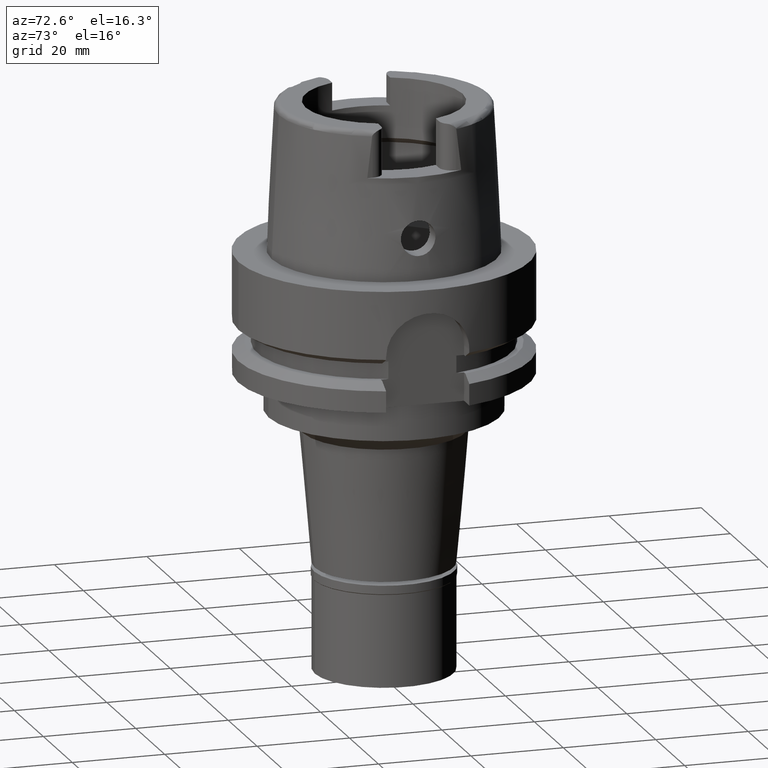
[diagram: clean part render]
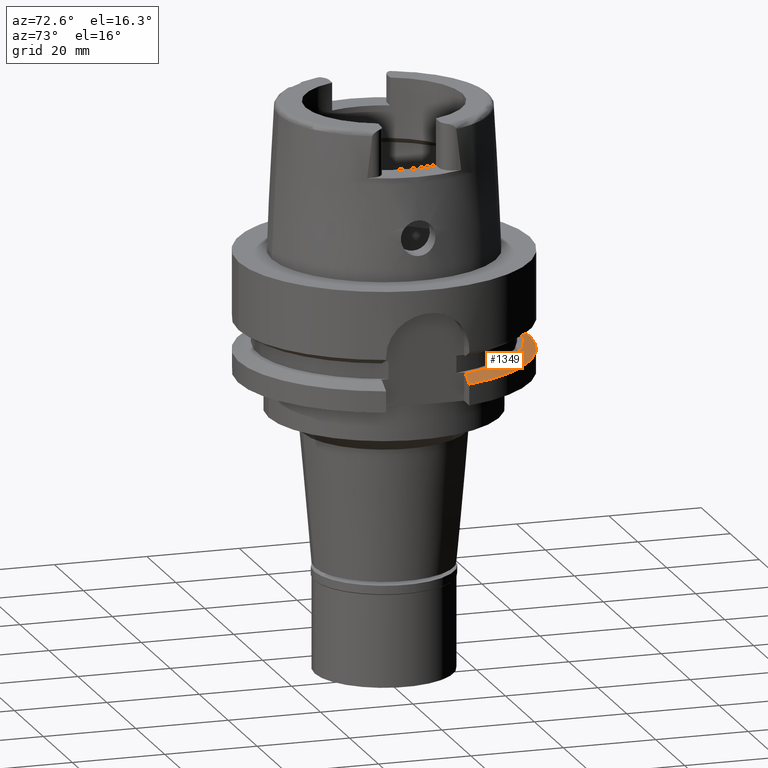
[diagram: same view with one face highlighted and labeled with its STEP entity id]
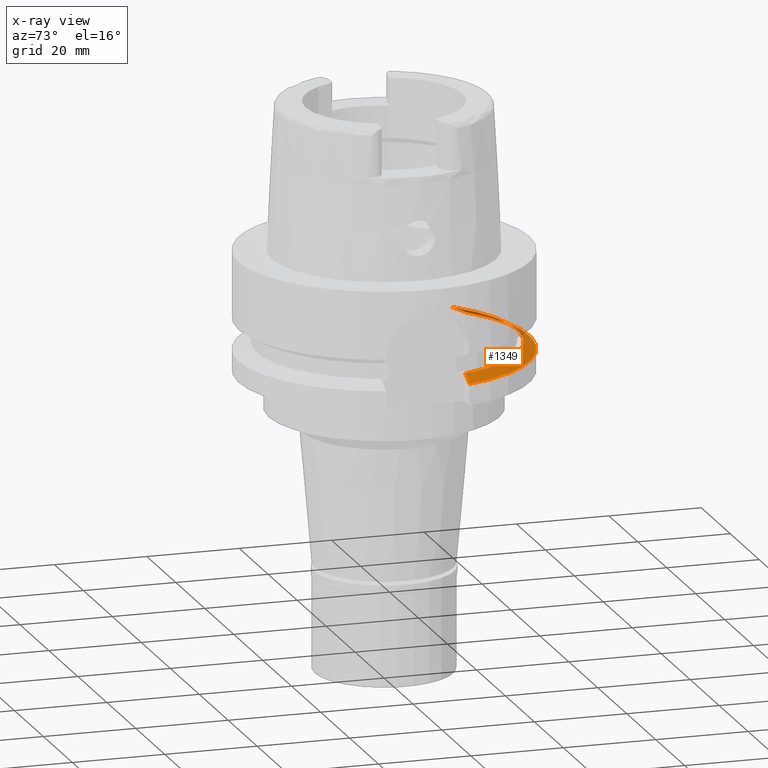
[diagram: x-ray of the same camera — body ghosted, the highlighted face saturated]
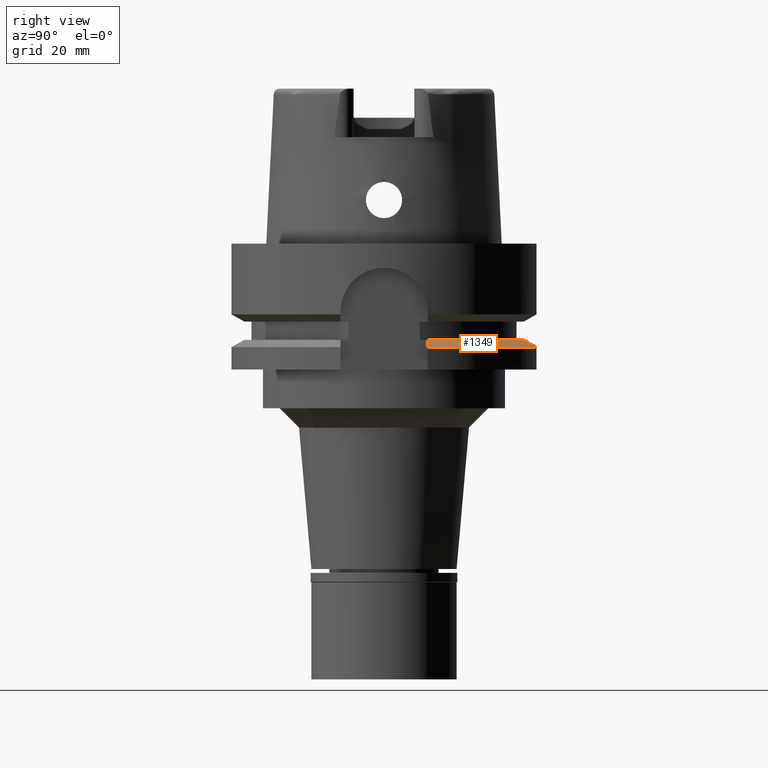
[diagram: same view with one face highlighted and labeled with its STEP entity id]
A machine part, auxiliary view. The second image highlights one B-rep face of the part: STEP entity #1349.
The next image is the same camera in x-ray: the body ghosted, the highlighted face saturated — about 11% of this face is hidden behind the body in this view.
A second angle (right view) of the same face is appended — the face is thin or edge-on in the first view.
In plain terms, the highlighted conical surface has half-angle 60 deg.
Its self-contained STEP definition (entity closure, byte-faithful):
#662 = AXIS2_PLACEMENT_3D ( 'NONE', #1709, #1316, #2077 ) ;
#751 = EDGE_CURVE ( 'NONE', #4637, #3938, #1319, .T. ) ;
#872 = DIRECTION ( 'NONE',  ( 0.0000000000000000000, 0.0000000000000000000, -1.000000000000000000 ) ) ;
#973 = VERTEX_POINT ( 'NONE', #1171 ) ;
#1171 = CARTESIAN_POINT ( 'NONE',  ( -20.00000400463999739, 20.85831983694999892, -19.87500000000000000 ) ) ;
#1216 = ORIENTED_EDGE ( 'NONE', *, *, #751, .F. ) ;
#1276 = DIRECTION ( 'NONE',  ( 0.0000000000000000000, -1.000000000000000000, 0.0000000000000000000 ) ) ;
#1316 = DIRECTION ( 'NONE',  ( 0.0000000000000000000, 0.0000000000000000000, -1.000000000000000000 ) ) ;
#1319 = CIRCLE ( 'NONE', #1949, 31.50000000000000711 ) ;
#1349 = ADVANCED_FACE ( 'NONE', ( #5589 ), #5182, .T. ) ;
#1460 = CARTESIAN_POINT ( 'NONE',  ( 28.33125523476728347, 9.000000427717699480, -20.35280757687736752 ) ) ;
#1464 = CARTESIAN_POINT ( 'NONE',  ( 27.46035049849000131, 9.000000213579998132, -19.87500000000000000 ) ) ;
#1507 = B_SPLINE_CURVE_WITH_KNOTS ( 'NONE', 3,
 ( #3537, #1460, #1813, #5270 ),
 .UNSPECIFIED., .F., .F.,
 ( 4, 4 ),
 ( 0.0000000000000000000, 1.000000000000000000 ),
 .UNSPECIFIED. ) ;
#1548 = ORIENTED_EDGE ( 'NONE', *, *, #2971, .T. ) ;
#1597 = EDGE_CURVE ( 'NONE', #3177, #3938, #1507, .T. ) ;
#1709 = CARTESIAN_POINT ( 'NONE',  ( 0.0000000000000000000, 0.0000000000000000000, -19.87500000000000000 ) ) ;
#1813 = CARTESIAN_POINT ( 'NONE',  ( 29.24010110251691330, 9.000001386287653560, -20.85364146424754850 ) ) ;
#1949 = AXIS2_PLACEMENT_3D ( 'NONE', #2745, #3915, #2641 ) ;
#2077 = DIRECTION ( 'NONE',  ( 0.0000000000000000000, 1.000000000000000000, 0.0000000000000000000 ) ) ;
#2172 = CARTESIAN_POINT ( 'NONE',  ( 0.0000000000000000000, 0.0000000000000000000, -20.62624953738000144 ) ) ;
#2405 = EDGE_LOOP ( 'NONE', ( #2565, #1548, #4796, #1216 ) ) ;
#2548 = AXIS2_PLACEMENT_3D ( 'NONE', #2172, #872, #1276 ) ;
#2565 = ORIENTED_EDGE ( 'NONE', *, *, #4825, .F. ) ;
#2620 = CARTESIAN_POINT ( 'NONE',  ( -20.00000400463999739, 20.85831983694999892, -19.87500000000000000 ) ) ;
#2641 = DIRECTION ( 'NONE',  ( -0.6349206349206079070, 0.7725773665802099233, 0.0000000000000000000 ) ) ;
#2745 = CARTESIAN_POINT ( 'NONE',  ( 0.0000000000000000000, 0.0000000000000000000, -21.37749907476000288 ) ) ;
#2877 = CARTESIAN_POINT ( 'NONE',  ( -20.00001377820999693, 24.33617572402999940, -21.37754845249999747 ) ) ;
#2971 = EDGE_CURVE ( 'NONE', #973, #3177, #5568, .T. ) ;
#2989 = CARTESIAN_POINT ( 'NONE',  ( -20.00000000000000000, 23.12602529124333728, -20.83776432756850028 ) ) ;
#3177 = VERTEX_POINT ( 'NONE', #1464 ) ;
#3478 = B_SPLINE_CURVE_WITH_KNOTS ( 'NONE', 3,
 ( #2620, #3920, #2989, #3803 ),
 .UNSPECIFIED., .F., .F.,
 ( 4, 4 ),
 ( 0.0000000000000000000, 1.000000000000000000 ),
 .UNSPECIFIED. ) ;
#3537 = CARTESIAN_POINT ( 'NONE',  ( 27.46035049849000131, 9.000000213579998132, -19.87500000000000000 ) ) ;
#3803 = CARTESIAN_POINT ( 'NONE',  ( -20.00001377820999693, 24.33617572402999940, -21.37754845249999747 ) ) ;
#3915 = DIRECTION ( 'NONE',  ( 0.0000000000000000000, 0.0000000000000000000, -1.000000000000000000 ) ) ;
#3920 = CARTESIAN_POINT ( 'NONE',  ( -20.00000000000000000, 21.96673999555000378, -20.33691484340183564 ) ) ;
#3938 = VERTEX_POINT ( 'NONE', #5141 ) ;
#4637 = VERTEX_POINT ( 'NONE', #2877 ) ;
#4796 = ORIENTED_EDGE ( 'NONE', *, *, #1597, .T. ) ;
#4825 = EDGE_CURVE ( 'NONE', #973, #4637, #3478, .T. ) ;
#5141 = CARTESIAN_POINT ( 'NONE',  ( 30.18691748950999809, 9.000000693433998222, -21.37750466785000114 ) ) ;
#5182 = CONICAL_SURFACE ( 'NONE', #2548, 30.19879763209999979, 1.047197551196400456 ) ;
#5270 = CARTESIAN_POINT ( 'NONE',  ( 30.18691748950999809, 9.000000693433998222, -21.37750466785000114 ) ) ;
#5568 = CIRCLE ( 'NONE', #662, 28.89759526419000224 ) ;
#5589 = FACE_OUTER_BOUND ( 'NONE', #2405, .T. ) ;